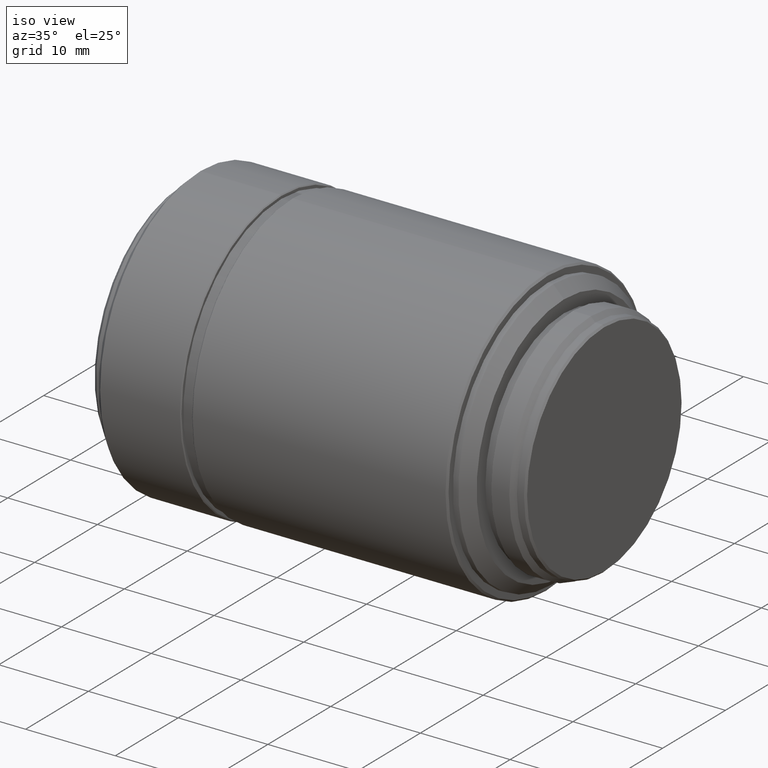
[diagram: clean part render]
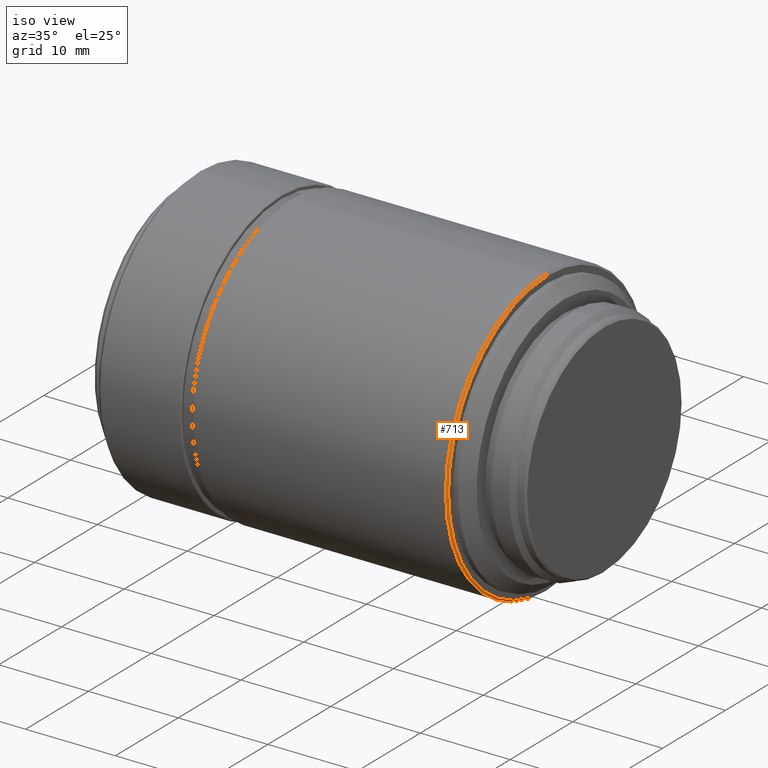
[diagram: same view with one face highlighted and labeled with its STEP entity id]
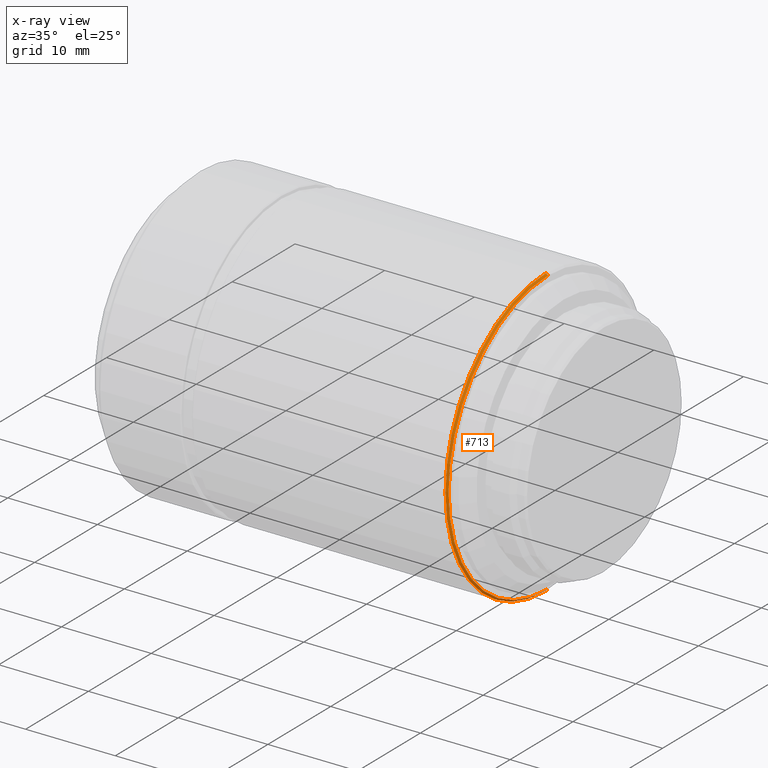
[diagram: x-ray of the same camera — body ghosted, the highlighted face saturated]
A machine part, iso view. The second image highlights one B-rep face of the part: STEP entity #713.
The next image is the same camera in x-ray: the body ghosted, the highlighted face saturated — about 0% of this face is hidden behind the body in this view.
In plain terms, the highlighted conical surface has half-angle 45 deg.
Its self-contained STEP definition (entity closure, byte-faithful):
#69 = VERTEX_POINT ( 'NONE', #716 ) ;
#102 = CARTESIAN_POINT ( 'NONE',  ( 42.97349364412800554, -16.00000000000000000, -1.959434878635769865E-15 ) ) ;
#129 = DIRECTION ( 'NONE',  ( 0.000000000000000000, 1.000000000000000000, 0.000000000000000000 ) ) ;
#138 = DIRECTION ( 'NONE',  ( -1.000000000000000000, 0.000000000000000000, 0.000000000000000000 ) ) ;
#179 = CARTESIAN_POINT ( 'NONE',  ( 42.97349364412800554, -16.00000000000000000, -1.959434878635769865E-15 ) ) ;
#233 = VECTOR ( 'NONE', #298, 1000.000000000000000 ) ;
#235 = AXIS2_PLACEMENT_3D ( 'NONE', #1112, #1229, #129 ) ;
#242 = CARTESIAN_POINT ( 'NONE',  ( 42.97349364412800554, 0.000000000000000000, 0.000000000000000000 ) ) ;
#265 = DIRECTION ( 'NONE',  ( 0.000000000000000000, 1.000000000000000000, 0.000000000000000000 ) ) ;
#296 = EDGE_LOOP ( 'NONE', ( #1213, #1207, #807, #1531 ) ) ;
#298 = DIRECTION ( 'NONE',  ( -0.7071067811865570096, -0.7071067811865380248, -8.659560562354819459E-17 ) ) ;
#355 = CIRCLE ( 'NONE', #1140, 16.00000000000000000 ) ;
#404 = VECTOR ( 'NONE', #424, 1000.000000000000000 ) ;
#424 = DIRECTION ( 'NONE',  ( -0.7071067811865570096, 0.7071067811865380248, 0.000000000000000000 ) ) ;
#452 = EDGE_CURVE ( 'NONE', #69, #1453, #1026, .T. ) ;
#457 = DIRECTION ( 'NONE',  ( 1.000000000000000000, 0.000000000000000000, 0.000000000000000000 ) ) ;
#492 = CARTESIAN_POINT ( 'NONE',  ( 42.97349364412800554, 0.000000000000000000, 0.000000000000000000 ) ) ;
#518 = EDGE_CURVE ( 'NONE', #992, #1453, #355, .T. ) ;
#612 = CIRCLE ( 'NONE', #235, 15.80000000000000071 ) ;
#689 = CONICAL_SURFACE ( 'NONE', #1117, 16.00000000000000000, 0.7853981633974348453 ) ;
#713 = ADVANCED_FACE ( 'NONE', ( #740 ), #689, .T. ) ;
#716 = CARTESIAN_POINT ( 'NONE',  ( 43.17349364412800128, 15.80000000000000071, 0.000000000000000000 ) ) ;
#734 = EDGE_CURVE ( 'NONE', #868, #69, #612, .T. ) ;
#740 = FACE_OUTER_BOUND ( 'NONE', #296, .T. ) ;
#807 = ORIENTED_EDGE ( 'NONE', *, *, #734, .F. ) ;
#822 = DIRECTION ( 'NONE',  ( 0.000000000000000000, 1.000000000000000000, 0.000000000000000000 ) ) ;
#868 = VERTEX_POINT ( 'NONE', #1169 ) ;
#973 = CARTESIAN_POINT ( 'NONE',  ( 42.97349364412800554, 16.00000000000000000, 0.000000000000000000 ) ) ;
#992 = VERTEX_POINT ( 'NONE', #102 ) ;
#1026 = LINE ( 'NONE', #1162, #404 ) ;
#1112 = CARTESIAN_POINT ( 'NONE',  ( 43.17349364412800128, 0.000000000000000000, 0.000000000000000000 ) ) ;
#1117 = AXIS2_PLACEMENT_3D ( 'NONE', #492, #138, #265 ) ;
#1140 = AXIS2_PLACEMENT_3D ( 'NONE', #242, #457, #822 ) ;
#1162 = CARTESIAN_POINT ( 'NONE',  ( 42.97349364412800554, 16.00000000000000000, 0.000000000000000000 ) ) ;
#1169 = CARTESIAN_POINT ( 'NONE',  ( 43.17349364412800128, -15.80000000000000071, -1.934941942652819995E-15 ) ) ;
#1207 = ORIENTED_EDGE ( 'NONE', *, *, #452, .F. ) ;
#1213 = ORIENTED_EDGE ( 'NONE', *, *, #518, .T. ) ;
#1229 = DIRECTION ( 'NONE',  ( 1.000000000000000000, 0.000000000000000000, 0.000000000000000000 ) ) ;
#1359 = EDGE_CURVE ( 'NONE', #868, #992, #1514, .T. ) ;
#1453 = VERTEX_POINT ( 'NONE', #973 ) ;
#1514 = LINE ( 'NONE', #179, #233 ) ;
#1531 = ORIENTED_EDGE ( 'NONE', *, *, #1359, .T. ) ;